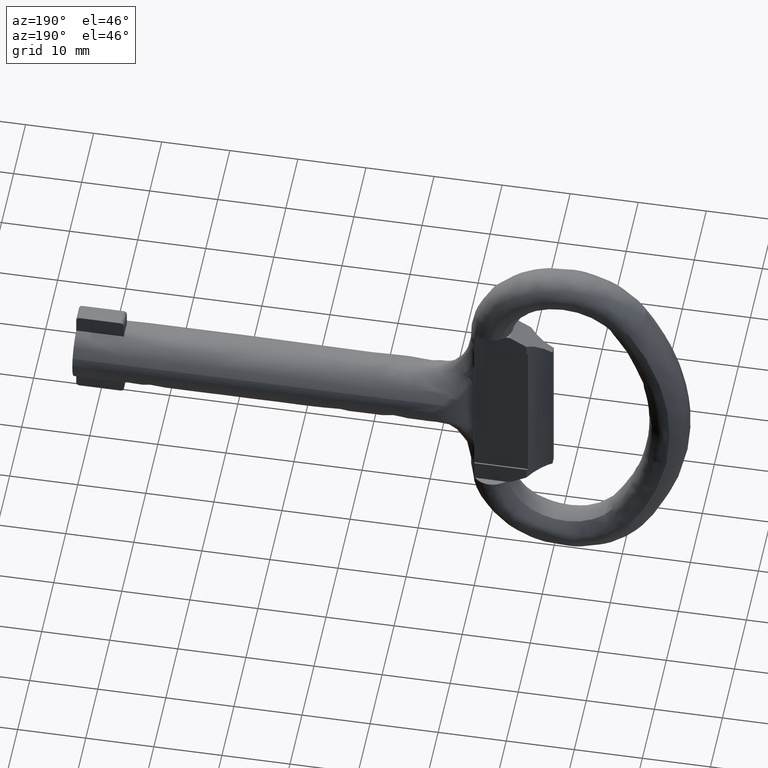
[diagram: clean part render]
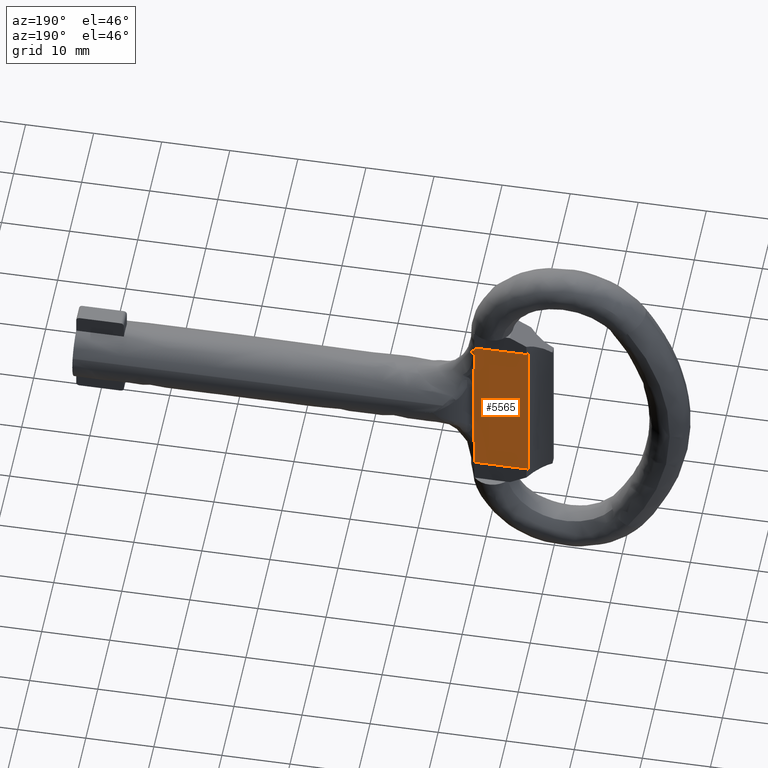
[diagram: same view with one face highlighted and labeled with its STEP entity id]
A machine part, auxiliary view. The second image highlights one B-rep face of the part: STEP entity #5565.
In plain terms, the highlighted face is a freeform B-spline surface patch.
Its self-contained STEP definition (entity closure, byte-faithful):
#5530=CARTESIAN_POINT('',(-66.873713587856344,1.800000365395777,-13.198801063167380));
#5531=CARTESIAN_POINT('',(-58.206391010156267,1.800000365395777,-13.198801063167380));
#5532=CARTESIAN_POINT('',(-66.873713587856344,1.800000837399237,13.198801213374100));
#5533=CARTESIAN_POINT('',(-58.206391010156267,1.800000837399237,13.198801213374100));
#5534=B_SPLINE_SURFACE_WITH_KNOTS('',1,1,((#5530,#5532),(#5531,#5533)),.UNSPECIFIED.,.F.,.F.,.U.,(2,2),(2,2),(0.0,8.667322577700077),(0.0,26.397602276541480),.UNSPECIFIED.);
#5535=CARTESIAN_POINT('',(-58.600002783350703,1.800000815964035,12.000000537784400));
#5536=VERTEX_POINT('',#5535);
#5537=CARTESIAN_POINT('',(-66.480103646455305,1.800000815964035,12.000000537784400));
#5538=VERTEX_POINT('',#5537);
#5539=CARTESIAN_POINT('',(-58.600002783350703,1.800000815964035,12.000000537784400));
#5540=CARTESIAN_POINT('',(-66.480103646455305,1.800000815964035,12.000000537784400));
#5541=QUASI_UNIFORM_CURVE('',1,(#5539,#5540),.UNSPECIFIED.,.F.,.U.);
#5542=EDGE_CURVE('',#5536,#5538,#5541,.T.);
#5543=ORIENTED_EDGE('',*,*,#5542,.F.);
#5544=CARTESIAN_POINT('',(-58.600002783350597,1.800000386830985,-12.000000602154421));
#5545=VERTEX_POINT('',#5544);
#5546=CARTESIAN_POINT('',(-58.600002783350597,1.800000386830985,-12.000000602154421));
#5547=CARTESIAN_POINT('',(-58.600002783350703,1.800000815964035,12.000000537784400));
#5548=QUASI_UNIFORM_CURVE('',1,(#5546,#5547),.UNSPECIFIED.,.F.,.U.);
#5549=EDGE_CURVE('',#5545,#5536,#5548,.T.);
#5550=ORIENTED_EDGE('',*,*,#5549,.F.);
#5551=CARTESIAN_POINT('',(-66.480103646455404,1.800000386830985,-12.000000602154399));
#5552=VERTEX_POINT('',#5551);
#5553=CARTESIAN_POINT('',(-66.480103646455404,1.800000386830985,-12.000000602154399));
#5554=CARTESIAN_POINT('',(-58.600002783350597,1.800000386830985,-12.000000602154421));
#5555=QUASI_UNIFORM_CURVE('',1,(#5553,#5554),.UNSPECIFIED.,.F.,.U.);
#5556=EDGE_CURVE('',#5552,#5545,#5555,.T.);
#5557=ORIENTED_EDGE('',*,*,#5556,.F.);
#5558=CARTESIAN_POINT('',(-66.480103646455305,1.800000815964035,12.000000537784400));
#5559=CARTESIAN_POINT('',(-66.480103646455404,1.800000386830985,-12.000000602154399));
#5560=QUASI_UNIFORM_CURVE('',1,(#5558,#5559),.UNSPECIFIED.,.F.,.U.);
#5561=EDGE_CURVE('',#5538,#5552,#5560,.T.);
#5562=ORIENTED_EDGE('',*,*,#5561,.F.);
#5563=EDGE_LOOP('',(#5543,#5550,#5557,#5562));
#5564=FACE_OUTER_BOUND('',#5563,.T.);
#5565=ADVANCED_FACE('',(#5564),#5534,.F.);